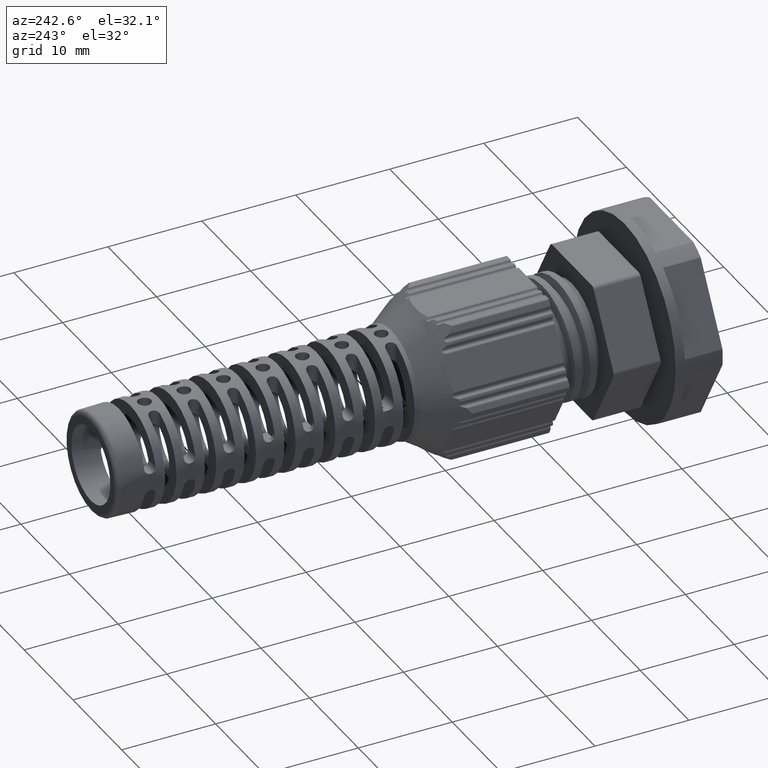
[diagram: clean part render]
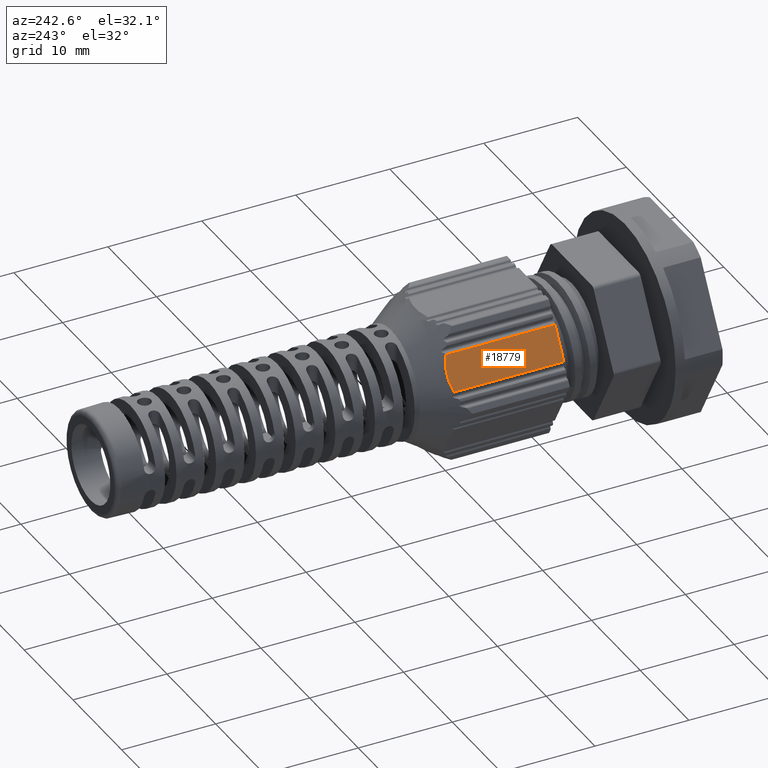
[diagram: same view with one face highlighted and labeled with its STEP entity id]
A machine part, auxiliary view. The second image highlights one B-rep face of the part: STEP entity #18779.
In plain terms, the highlighted planar face has unit normal (-0.866, 0, 0.5).
Its self-contained STEP definition (entity closure, byte-faithful):
#121 = ORIENTED_EDGE ( 'NONE', *, *, #959, .F. ) ;
#959 = EDGE_CURVE ( 'NONE', #20213, #20259, #20695, .T. ) ;
#1128 = VERTEX_POINT ( 'NONE', #8361 ) ;
#1149 = VERTEX_POINT ( 'NONE', #8379 ) ;
#1998 = EDGE_LOOP ( 'NONE', ( #11962, #121, #19086, #19102 ) ) ;
#8007 = CARTESIAN_POINT ( 'NONE',  ( -7.399531325198787500, 12.91845175470113600, 2.183637284919051100 ) ) ;
#8011 = CARTESIAN_POINT ( 'NONE',  ( -5.590851179369837000, 12.91845186001134100, 5.316363191367393900 ) ) ;
#8013 = CARTESIAN_POINT ( 'NONE',  ( -7.106173644382888500, 13.11584415611424200, 2.691746732995008000 ) ) ;
#8016 = CARTESIAN_POINT ( 'NONE',  ( -6.805592558465430200, 13.22687425244512500, 3.212367913125217200 ) ) ;
#8042 = CARTESIAN_POINT ( 'NONE',  ( -6.185879963450249300, 13.22713310019715700, 4.285741613781865100 ) ) ;
#8060 = CARTESIAN_POINT ( 'NONE',  ( -5.884262108207385800, 13.11588067672811400, 4.808159063532463600 ) ) ;
#8361 = CARTESIAN_POINT ( 'NONE',  ( -7.399792371658842100, 1.233406263480284700, 2.183185636711980000 ) ) ;
#8379 = CARTESIAN_POINT ( 'NONE',  ( -5.590590530393559000, 1.233406263480285600, 5.316815146952508000 ) ) ;
#11962 = ORIENTED_EDGE ( 'NONE', *, *, #18609, .T. ) ;
#13043 = VECTOR ( 'NONE', #13714, 1000.000000000000000 ) ;
#13063 = VECTOR ( 'NONE', #13887, 1000.000000000000100 ) ;
#13086 = VECTOR ( 'NONE', #13866, 1000.000000000000000 ) ;
#13196 = AXIS2_PLACEMENT_3D ( 'NONE', #14846, #14893, #14859 ) ;
#13705 = LINE ( 'NONE', #13713, #13043 ) ;
#13713 = CARTESIAN_POINT ( 'NONE',  ( -5.590589668782688400, 1.233406263480285600, 5.316814649398726700 ) ) ;
#13714 = DIRECTION ( 'NONE',  ( -2.231470787349899700E-005, 0.9999999990041076300, -3.865020779290022700E-005 ) ) ;
#13841 = CARTESIAN_POINT ( 'NONE',  ( -4.330127018922195400, 1.233406263480285600, 7.500000000000000000 ) ) ;
#13845 = LINE ( 'NONE', #13841, #13063 ) ;
#13866 = DIRECTION ( 'NONE',  ( -2.231495524500690800E-005, -0.9999999990040855400, -3.865063625298923700E-005 ) ) ;
#13883 = LINE ( 'NONE', #13886, #13086 ) ;
#13886 = CARTESIAN_POINT ( 'NONE',  ( -7.399530758701955900, 12.91845170102233500, 2.183636773759538100 ) ) ;
#13887 = DIRECTION ( 'NONE',  ( 0.5000000000000004400, 0.0000000000000000000, 0.8660254037844383700 ) ) ;
#14846 = CARTESIAN_POINT ( 'NONE',  ( -4.330127018922195400, 47.73795169273444100, 7.500000000000000000 ) ) ;
#14859 = DIRECTION ( 'NONE',  ( 0.5000000000000004400, 0.0000000000000000000, 0.8660254037844383700 ) ) ;
#14864 = FACE_OUTER_BOUND ( 'NONE', #1998, .T. ) ;
#14878 = PLANE ( 'NONE',  #13196 ) ;
#14893 = DIRECTION ( 'NONE',  ( -0.8660254037844383700, 0.0000000000000000000, 0.5000000000000004400 ) ) ;
#16541 = CARTESIAN_POINT ( 'NONE',  ( -7.399531325198787500, 12.91845175470113600, 2.183637284919051100 ) ) ;
#16620 = CARTESIAN_POINT ( 'NONE',  ( -5.590851179369837000, 12.91845186001134100, 5.316363191367393900 ) ) ;
#18609 = EDGE_CURVE ( 'NONE', #1149, #20259, #13705, .T. ) ;
#18643 = EDGE_CURVE ( 'NONE', #20213, #1128, #13883, .T. ) ;
#18644 = EDGE_CURVE ( 'NONE', #1128, #1149, #13845, .T. ) ;
#18779 = ADVANCED_FACE ( 'NONE', ( #14864 ), #14878, .T. ) ;
#19086 = ORIENTED_EDGE ( 'NONE', *, *, #18643, .T. ) ;
#19102 = ORIENTED_EDGE ( 'NONE', *, *, #18644, .T. ) ;
#20213 = VERTEX_POINT ( 'NONE', #16541 ) ;
#20259 = VERTEX_POINT ( 'NONE', #16620 ) ;
#20695 = B_SPLINE_CURVE_WITH_KNOTS ( 'NONE', 3,
 ( #8007, #8013, #8016, #8042, #8060, #8011 ),
 .UNSPECIFIED., .F., .F.,
 ( 4, 2, 4 ),
 ( 3.356927658858827400E-010, 0.001833724553585752000, 0.003667448771478739600 ),
 .UNSPECIFIED. ) ;